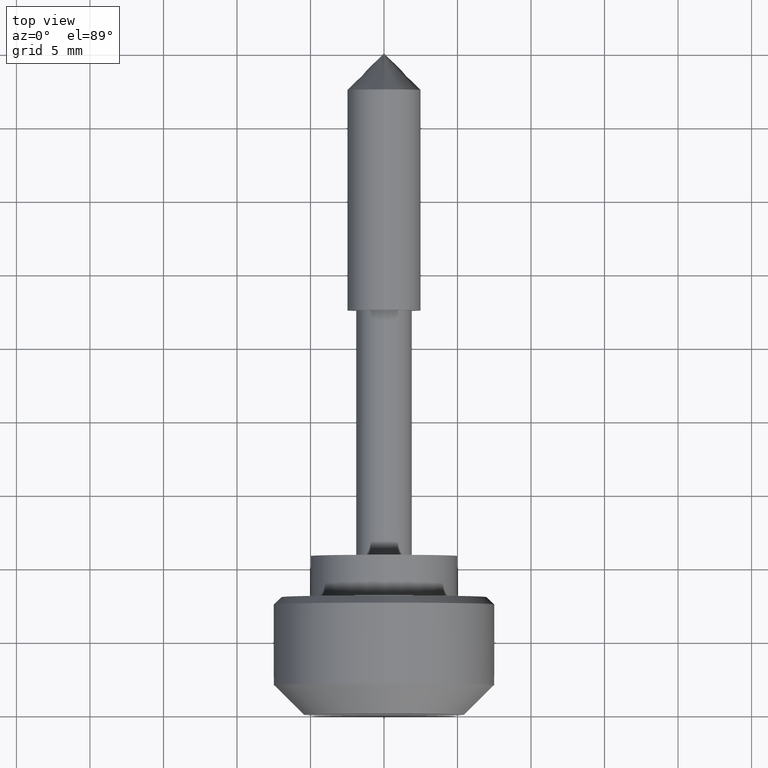
[diagram: clean part render]
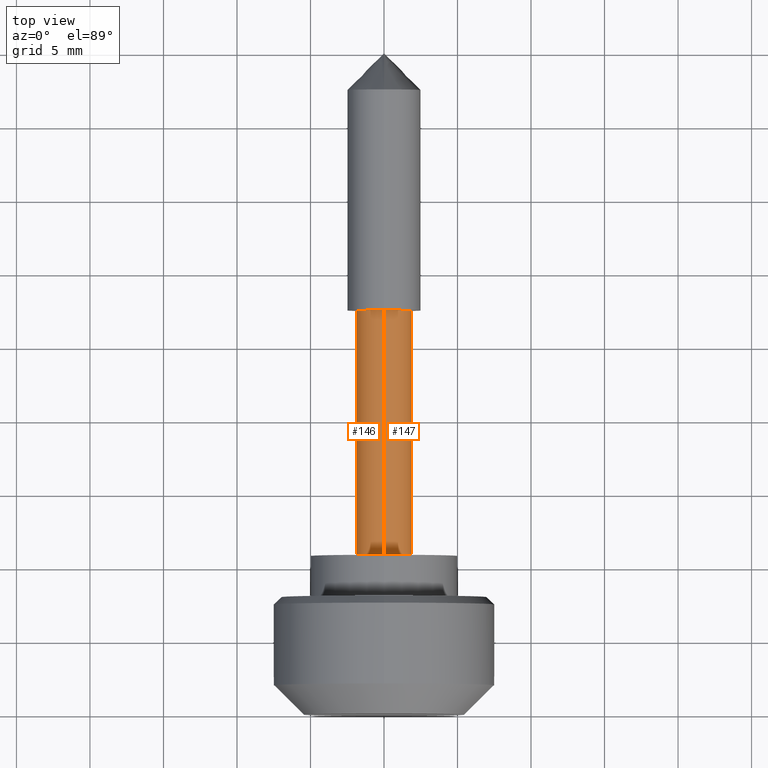
[diagram: same view with one multi-face feature highlighted, each face labeled with its STEP entity id]
A machine part, top view. The highlighted faces form ONE feature: a constant-radius fillet chain: 2 tangent blend faces with common blend radius 1.9 mm. The faces share edges in the B-rep.
Their STEP definitions:
[1] entity #146 (Cylinder):
#146=ADVANCED_FACE('',(#500),#499,.T.);
#499=CYLINDRICAL_SURFACE('',#781,1.90000000000E+00);
#500=FACE_OUTER_BOUND('',#782,.T.);
#778=CARTESIAN_POINT('',(1.00000000000E+03,0.00000000000E+00,0.00000000000E+00));
#779=DIRECTION('',(1.00000000000E+00,-0.00000000000E+00,-0.00000000000E+00));
#780=DIRECTION('',(-0.00000000000E+00,-0.00000000000E+00,-1.00000000000E+00));
#781=AXIS2_PLACEMENT_3D('',#778,#779,#780);
#782=EDGE_LOOP('',(#992,#993,#994,#995));
#992=ORIENTED_EDGE('',*,*,#1090,.F.);
#993=ORIENTED_EDGE('',*,*,#1114,.F.);
#994=ORIENTED_EDGE('',*,*,#1087,.T.);
#995=ORIENTED_EDGE('',*,*,#1115,.T.);
#1087=EDGE_CURVE('',#1527,#1526,#1534,.T.);
#1090=EDGE_CURVE('',#1554,#1555,#1556,.T.);
#1114=EDGE_CURVE('',#1527,#1554,#1712,.T.);
#1115=EDGE_CURVE('',#1526,#1555,#1718,.T.);
#1526=VERTEX_POINT('',#2021);
#1527=VERTEX_POINT('',#2022);
#1534=CIRCLE('',#2030,1.90000000000E+00);
#1554=VERTEX_POINT('',#2041);
#1555=VERTEX_POINT('',#2042);
#1556=CIRCLE('',#2046,1.90000000000E+00);
#1712=(BOUNDED_CURVE() B_SPLINE_CURVE(1,(#2139,#2140),.UNSPECIFIED.,.F.,.F.) B_SPLINE_CURVE_WITH_KNOTS((2,2),(8.33333328360E-02,9.16666665505E-01),.UNSPECIFIED.) CURVE() GEOMETRIC_REPRESENTATION_ITEM() RATIONAL_B_SPLINE_CURVE((1.00000000000E+00,1.00000000000E+00)) REPRESENTATION_ITEM('') );
#1718=(BOUNDED_CURVE() B_SPLINE_CURVE(1,(#2141,#2142),.UNSPECIFIED.,.F.,.F.) B_SPLINE_CURVE_WITH_KNOTS((2,2),(8.33333333333E-02,9.16666666667E-01),.UNSPECIFIED.) CURVE() GEOMETRIC_REPRESENTATION_ITEM() RATIONAL_B_SPLINE_CURVE((7.50000000000E-01,7.50000000000E-01)) REPRESENTATION_ITEM('') );
#2021=CARTESIAN_POINT('',(0.00000000000E+00,2.22044604925E-16,1.90000000000E+00));
#2022=CARTESIAN_POINT('',(0.00000000000E+00,0.00000000000E+00,-1.90000000000E+00));
#2027=CARTESIAN_POINT('',(0.00000000000E+00,0.00000000000E+00,0.00000000000E+00));
#2028=DIRECTION('',(1.00000000000E+00,0.00000000000E+00,0.00000000000E+00));
#2029=DIRECTION('',(0.00000000000E+00,-1.22460635382E-16,-1.00000000000E+00));
#2030=AXIS2_PLACEMENT_3D('',#2027,#2028,#2029);
#2041=CARTESIAN_POINT('',(1.75000000000E+01,0.00000000000E+00,-1.90000000000E+00));
#2042=CARTESIAN_POINT('',(1.75000000000E+01,2.22044604925E-16,1.90000000000E+00));
#2043=CARTESIAN_POINT('',(1.75000000000E+01,0.00000000000E+00,0.00000000000E+00));
#2044=DIRECTION('',(1.00000000000E+00,0.00000000000E+00,0.00000000000E+00));
#2045=DIRECTION('',(0.00000000000E+00,-1.22460635382E-16,-1.00000000000E+00));
#2046=AXIS2_PLACEMENT_3D('',#2043,#2044,#2045);
#2139=CARTESIAN_POINT('',(-1.04448130145E-08,0.00000000000E+00,-1.90000000000E+00));
#2140=CARTESIAN_POINT('',(1.74999999756E+01,0.00000000000E+00,-1.90000000000E+00));
#2141=CARTESIAN_POINT('',(-2.96059473233E-16,0.00000000000E+00,1.90000000000E+00));
#2142=CARTESIAN_POINT('',(1.75000000000E+01,0.00000000000E+00,1.90000000000E+00));
[2] entity #147 (Cylinder):
#147=ADVANCED_FACE('',(#510),#509,.T.);
#509=CYLINDRICAL_SURFACE('',#786,1.90000000000E+00);
#510=FACE_OUTER_BOUND('',#787,.T.);
#783=CARTESIAN_POINT('',(1.00000000000E+03,0.00000000000E+00,0.00000000000E+00));
#784=DIRECTION('',(1.00000000000E+00,-0.00000000000E+00,-0.00000000000E+00));
#785=DIRECTION('',(-0.00000000000E+00,-0.00000000000E+00,-1.00000000000E+00));
#786=AXIS2_PLACEMENT_3D('',#783,#784,#785);
#787=EDGE_LOOP('',(#996,#997,#998,#999));
#996=ORIENTED_EDGE('',*,*,#1086,.T.);
#997=ORIENTED_EDGE('',*,*,#1114,.T.);
#998=ORIENTED_EDGE('',*,*,#1091,.F.);
#999=ORIENTED_EDGE('',*,*,#1115,.F.);
#1086=EDGE_CURVE('',#1526,#1527,#1528,.T.);
#1091=EDGE_CURVE('',#1555,#1554,#1562,.T.);
#1114=EDGE_CURVE('',#1527,#1554,#1712,.T.);
#1115=EDGE_CURVE('',#1526,#1555,#1718,.T.);
#1526=VERTEX_POINT('',#2021);
#1527=VERTEX_POINT('',#2022);
#1528=CIRCLE('',#2026,1.90000000000E+00);
#1554=VERTEX_POINT('',#2041);
#1555=VERTEX_POINT('',#2042);
#1562=CIRCLE('',#2050,1.90000000000E+00);
#1712=(BOUNDED_CURVE() B_SPLINE_CURVE(1,(#2139,#2140),.UNSPECIFIED.,.F.,.F.) B_SPLINE_CURVE_WITH_KNOTS((2,2),(8.33333328360E-02,9.16666665505E-01),.UNSPECIFIED.) CURVE() GEOMETRIC_REPRESENTATION_ITEM() RATIONAL_B_SPLINE_CURVE((1.00000000000E+00,1.00000000000E+00)) REPRESENTATION_ITEM('') );
#1718=(BOUNDED_CURVE() B_SPLINE_CURVE(1,(#2141,#2142),.UNSPECIFIED.,.F.,.F.) B_SPLINE_CURVE_WITH_KNOTS((2,2),(8.33333333333E-02,9.16666666667E-01),.UNSPECIFIED.) CURVE() GEOMETRIC_REPRESENTATION_ITEM() RATIONAL_B_SPLINE_CURVE((7.50000000000E-01,7.50000000000E-01)) REPRESENTATION_ITEM('') );
#2021=CARTESIAN_POINT('',(0.00000000000E+00,2.22044604925E-16,1.90000000000E+00));
#2022=CARTESIAN_POINT('',(0.00000000000E+00,0.00000000000E+00,-1.90000000000E+00));
#2023=CARTESIAN_POINT('',(0.00000000000E+00,0.00000000000E+00,0.00000000000E+00));
#2024=DIRECTION('',(1.00000000000E+00,0.00000000000E+00,0.00000000000E+00));
#2025=DIRECTION('',(0.00000000000E+00,-1.22460635382E-16,-1.00000000000E+00));
#2026=AXIS2_PLACEMENT_3D('',#2023,#2024,#2025);
#2041=CARTESIAN_POINT('',(1.75000000000E+01,0.00000000000E+00,-1.90000000000E+00));
#2042=CARTESIAN_POINT('',(1.75000000000E+01,2.22044604925E-16,1.90000000000E+00));
#2047=CARTESIAN_POINT('',(1.75000000000E+01,0.00000000000E+00,0.00000000000E+00));
#2048=DIRECTION('',(1.00000000000E+00,0.00000000000E+00,0.00000000000E+00));
#2049=DIRECTION('',(0.00000000000E+00,-1.22460635382E-16,-1.00000000000E+00));
#2050=AXIS2_PLACEMENT_3D('',#2047,#2048,#2049);
#2139=CARTESIAN_POINT('',(-1.04448130145E-08,0.00000000000E+00,-1.90000000000E+00));
#2140=CARTESIAN_POINT('',(1.74999999756E+01,0.00000000000E+00,-1.90000000000E+00));
#2141=CARTESIAN_POINT('',(-2.96059473233E-16,0.00000000000E+00,1.90000000000E+00));
#2142=CARTESIAN_POINT('',(1.75000000000E+01,0.00000000000E+00,1.90000000000E+00));